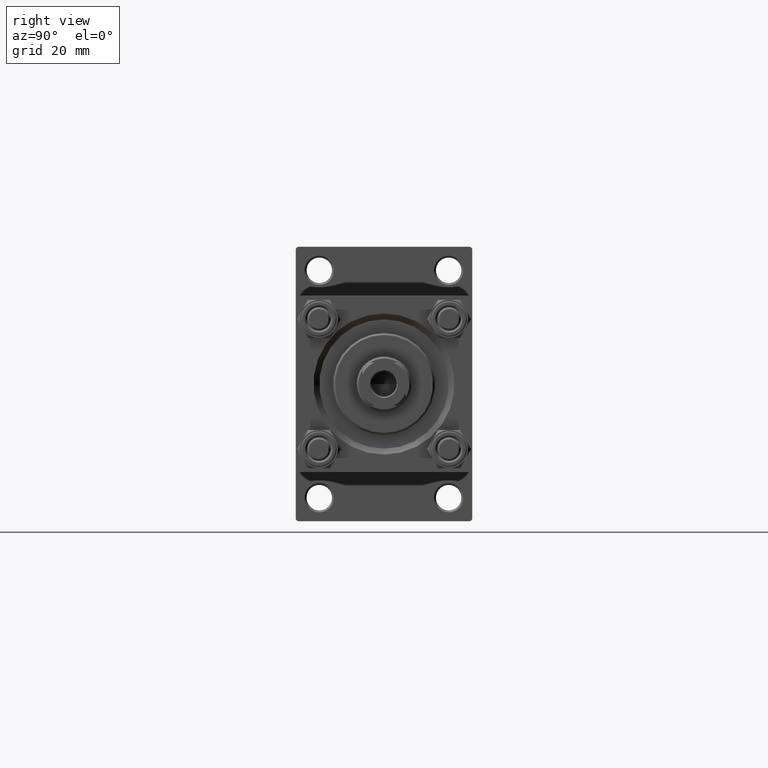
[diagram: clean part render]
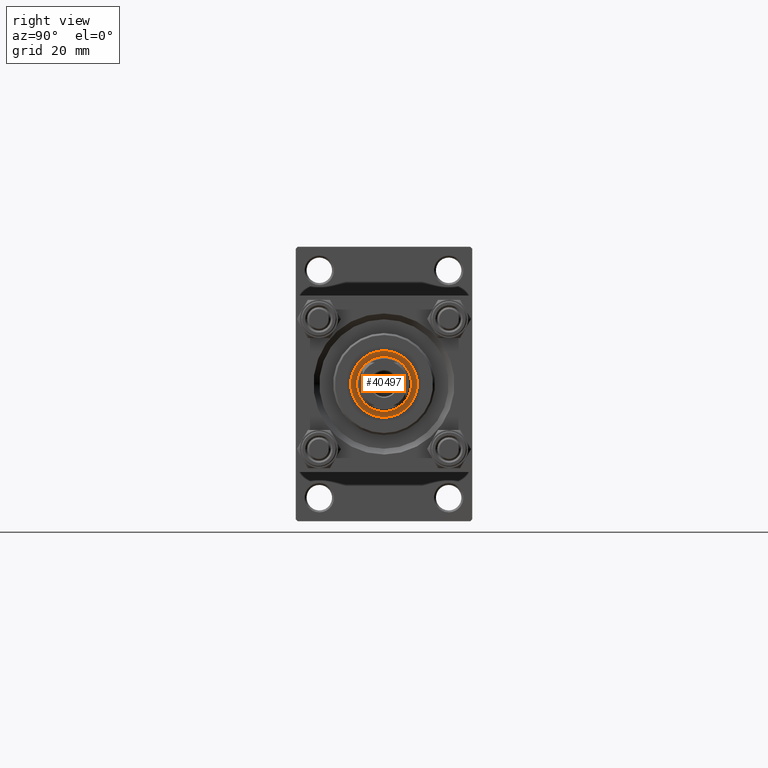
[diagram: same view with one face highlighted and labeled with its STEP entity id]
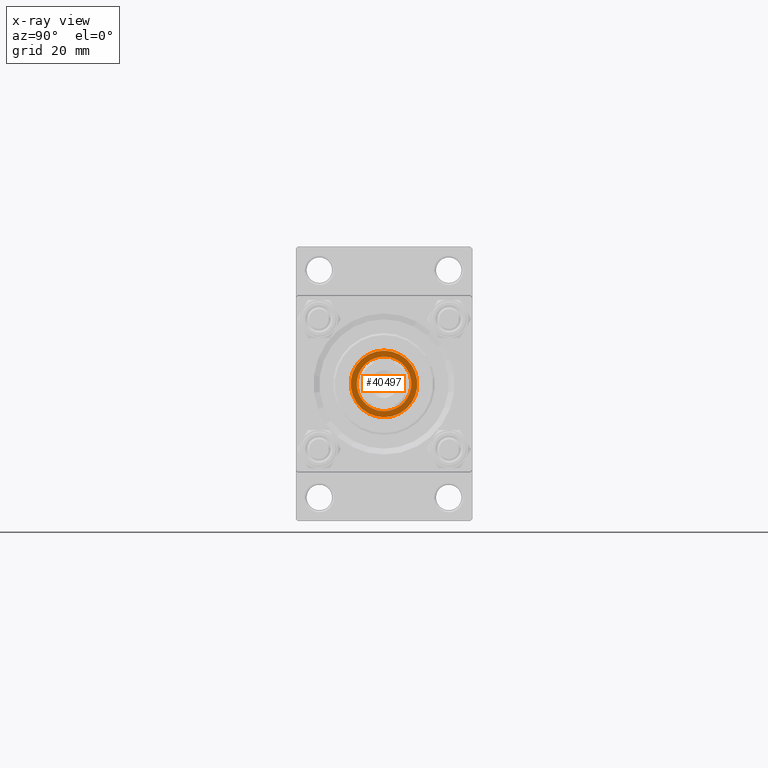
[diagram: x-ray of the same camera — body ghosted, the highlighted face saturated]
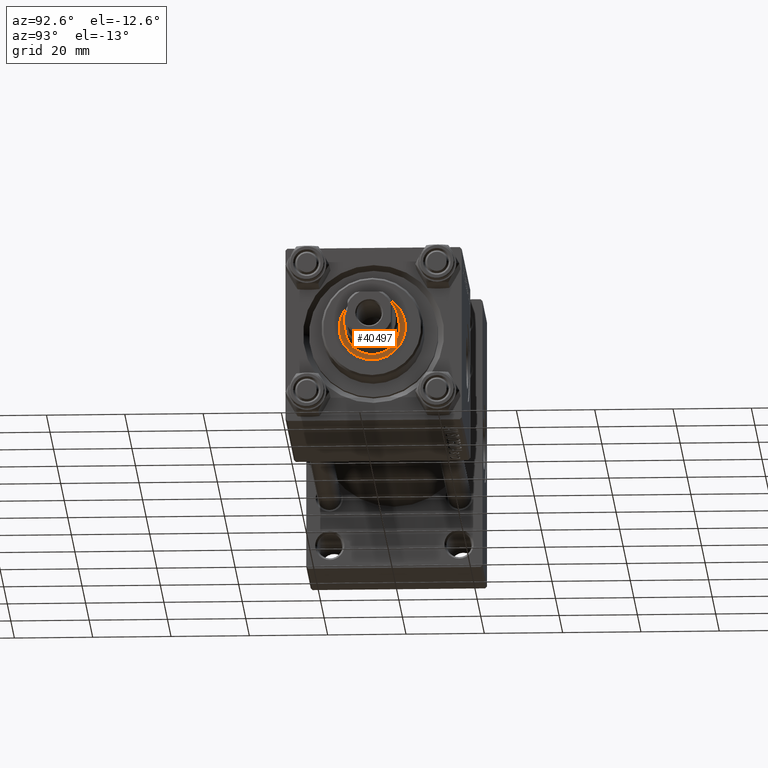
[diagram: same view with one face highlighted and labeled with its STEP entity id]
A machine part, right view. The second image highlights one B-rep face of the part: STEP entity #40497.
The next image is the same camera in x-ray: the body ghosted, the highlighted face saturated — about 0% of this face is hidden behind the body in this view.
A second angle (auxiliary view) of the same face is appended — the face is thin or edge-on in the first view.
In plain terms, the highlighted planar face has unit normal (1, 0, 0).
Its self-contained STEP definition (entity closure, byte-faithful):
#616 = EDGE_CURVE ( 'NONE', #32874, #22666, #17322, .T. ) ;
#1106 = DIRECTION ( 'NONE',  ( -0.000000000000000000, -0.000000000000000000, -1.000000000000000000 ) ) ;
#5942 = VERTEX_POINT ( 'NONE', #10294 ) ;
#6604 = DIRECTION ( 'NONE',  ( -0.000000000000000000, -0.000000000000000000, -1.000000000000000000 ) ) ;
#9296 = ORIENTED_EDGE ( 'NONE', *, *, #44705, .T. ) ;
#9539 = CIRCLE ( 'NONE', #33730, 7.000000000000000000 ) ;
#10294 = CARTESIAN_POINT ( 'NONE',  ( -8.500000000000000000, 1.040949779275250140E-15, 36.19999999999999574 ) ) ;
#10645 = EDGE_CURVE ( 'NONE', #22666, #32874, #9539, .T. ) ;
#12093 = AXIS2_PLACEMENT_3D ( 'NONE', #26854, #19515, #35431 ) ;
#12609 = EDGE_LOOP ( 'NONE', ( #45966, #41041 ) ) ;
#12881 = CARTESIAN_POINT ( 'NONE',  ( 0.000000000000000000, 0.000000000000000000, 36.19999999999999574 ) ) ;
#14170 = EDGE_CURVE ( 'NONE', #5942, #30223, #45132, .T. ) ;
#15571 = CARTESIAN_POINT ( 'NONE',  ( 7.000000000000000000, 0.000000000000000000, 36.19999999999999574 ) ) ;
#17322 = CIRCLE ( 'NONE', #49602, 7.000000000000000000 ) ;
#19515 = DIRECTION ( 'NONE',  ( 0.000000000000000000, 0.000000000000000000, 1.000000000000000000 ) ) ;
#20288 = CARTESIAN_POINT ( 'NONE',  ( -7.000000000000000000, 8.572527594031473190E-16, 36.19999999999999574 ) ) ;
#22666 = VERTEX_POINT ( 'NONE', #15571 ) ;
#22713 = CIRCLE ( 'NONE', #23512, 8.500000000000000000 ) ;
#23512 = AXIS2_PLACEMENT_3D ( 'NONE', #12881, #28298, #29799 ) ;
#23796 = FACE_BOUND ( 'NONE', #12609, .T. ) ;
#25169 = CARTESIAN_POINT ( 'NONE',  ( 8.500000000000000000, 0.000000000000000000, 36.19999999999999574 ) ) ;
#26854 = CARTESIAN_POINT ( 'NONE',  ( 0.000000000000000000, 0.000000000000000000, 36.19999999999999574 ) ) ;
#28298 = DIRECTION ( 'NONE',  ( 0.000000000000000000, 0.000000000000000000, 1.000000000000000000 ) ) ;
#29799 = DIRECTION ( 'NONE',  ( 1.000000000000000000, 0.000000000000000000, 0.000000000000000000 ) ) ;
#30223 = VERTEX_POINT ( 'NONE', #25169 ) ;
#32874 = VERTEX_POINT ( 'NONE', #20288 ) ;
#33391 = CARTESIAN_POINT ( 'NONE',  ( 0.000000000000000000, 0.000000000000000000, 36.19999999999999574 ) ) ;
#33399 = CARTESIAN_POINT ( 'NONE',  ( 0.000000000000000000, 0.000000000000000000, 36.19999999999999574 ) ) ;
#33730 = AXIS2_PLACEMENT_3D ( 'NONE', #33391, #6604, #37677 ) ;
#34433 = PLANE ( 'NONE',  #12093 ) ;
#35431 = DIRECTION ( 'NONE',  ( 1.000000000000000000, 0.000000000000000000, -0.000000000000000000 ) ) ;
#35757 = EDGE_LOOP ( 'NONE', ( #9296, #37909 ) ) ;
#36214 = DIRECTION ( 'NONE',  ( 1.000000000000000000, 0.000000000000000000, 0.000000000000000000 ) ) ;
#37053 = AXIS2_PLACEMENT_3D ( 'NONE', #33399, #40233, #41219 ) ;
#37677 = DIRECTION ( 'NONE',  ( 1.000000000000000000, 0.000000000000000000, 0.000000000000000000 ) ) ;
#37909 = ORIENTED_EDGE ( 'NONE', *, *, #14170, .T. ) ;
#40233 = DIRECTION ( 'NONE',  ( 0.000000000000000000, 0.000000000000000000, 1.000000000000000000 ) ) ;
#40497 = ADVANCED_FACE ( 'NONE', ( #46565, #23796 ), #34433, .T. ) ;
#41041 = ORIENTED_EDGE ( 'NONE', *, *, #616, .T. ) ;
#41219 = DIRECTION ( 'NONE',  ( 1.000000000000000000, 0.000000000000000000, 0.000000000000000000 ) ) ;
#44296 = CARTESIAN_POINT ( 'NONE',  ( 0.000000000000000000, 0.000000000000000000, 36.19999999999999574 ) ) ;
#44705 = EDGE_CURVE ( 'NONE', #30223, #5942, #22713, .T. ) ;
#45132 = CIRCLE ( 'NONE', #37053, 8.500000000000000000 ) ;
#45966 = ORIENTED_EDGE ( 'NONE', *, *, #10645, .T. ) ;
#46565 = FACE_OUTER_BOUND ( 'NONE', #35757, .T. ) ;
#49602 = AXIS2_PLACEMENT_3D ( 'NONE', #44296, #1106, #36214 ) ;